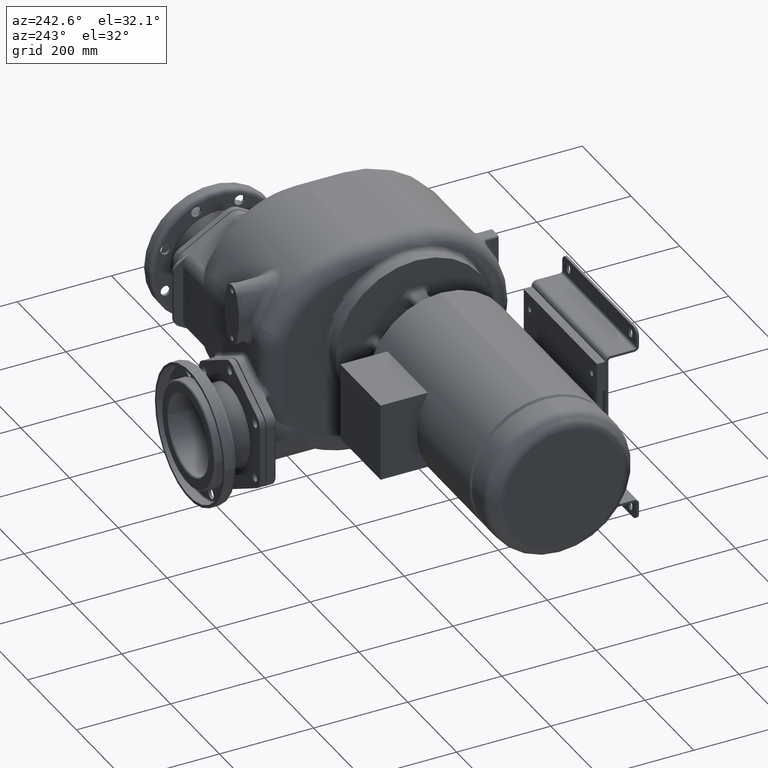
[diagram: clean part render]
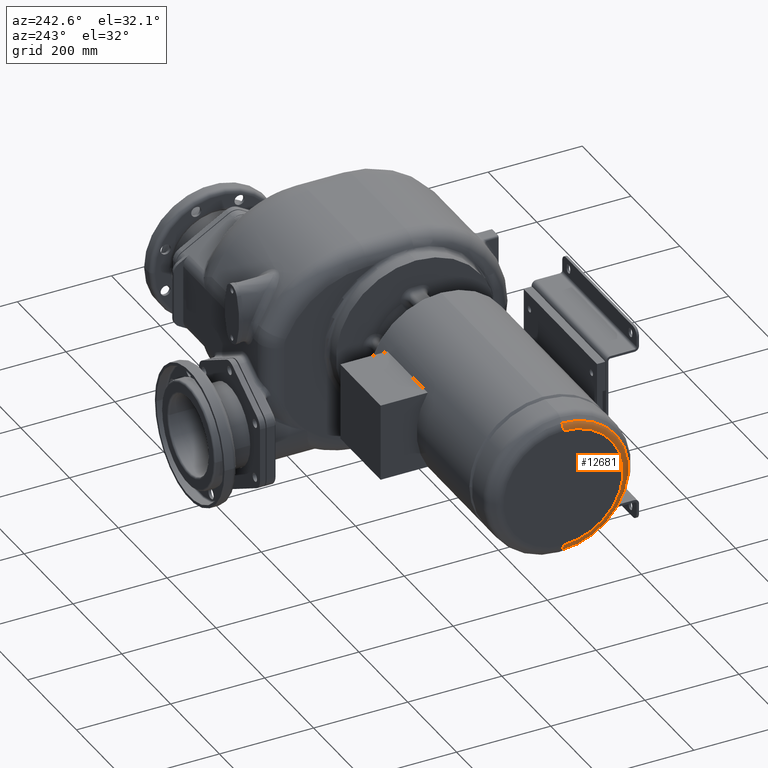
[diagram: same view with one face highlighted and labeled with its STEP entity id]
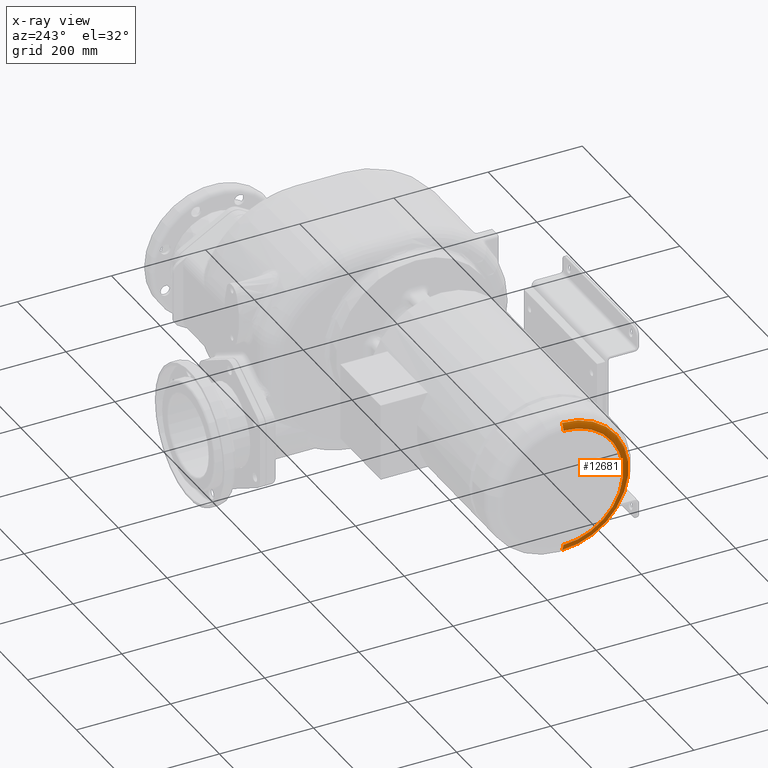
[diagram: x-ray of the same camera — body ghosted, the highlighted face saturated]
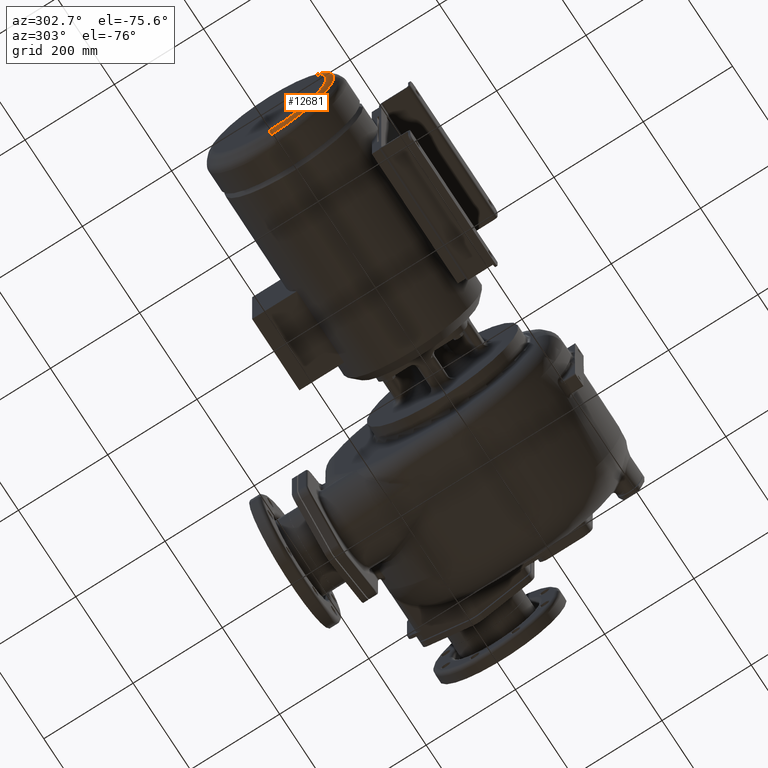
[diagram: same view with one face highlighted and labeled with its STEP entity id]
A machine part, auxiliary view. The second image highlights one B-rep face of the part: STEP entity #12681.
The next image is the same camera in x-ray: the body ghosted, the highlighted face saturated — about 0% of this face is hidden behind the body in this view.
A second angle (auxiliary view) of the same face is appended — the face is thin or edge-on in the first view.
In plain terms, the highlighted toroidal blend (fillet) surface has major radius 127.216 mm and minor (blend) radius 20 mm.
Its self-contained STEP definition (entity closure, byte-faithful):
#178=CARTESIAN_POINT('',(-7.176421374491E2,2.3E2,4.263258414561E-14));
#179=DIRECTION('',(-1.E0,0.E0,0.E0));
#180=DIRECTION('',(0.E0,1.824183733377E-10,-1.E0));
#181=AXIS2_PLACEMENT_3D('',#178,#179,#180);
#197=CARTESIAN_POINT('',(-7.035E2,2.299999997711E2,1.272157652441E2));
#198=DIRECTION('',(0.E0,1.E0,1.799578583372E-9));
#199=DIRECTION('',(-1.E0,0.E0,0.E0));
#200=AXIS2_PLACEMENT_3D('',#197,#198,#199);
#202=CARTESIAN_POINT('',(-7.235E2,2.3E2,4.263258414561E-14));
#203=DIRECTION('',(-1.E0,0.E0,0.E0));
#204=DIRECTION('',(0.E0,1.799577240178E-9,-1.E0));
#205=AXIS2_PLACEMENT_3D('',#202,#203,#204);
#212=CARTESIAN_POINT('',(-7.035E2,2.300000002289E2,-1.272157652441E2));
#213=DIRECTION('',(0.E0,-1.E0,-1.799578692660E-9));
#214=DIRECTION('',(-1.E0,0.E0,0.E0));
#215=AXIS2_PLACEMENT_3D('',#212,#213,#214);
#11924=CARTESIAN_POINT('',(-7.235E2,2.300000002289E2,-1.272157652441E2));
#11925=CARTESIAN_POINT('',(-7.235E2,2.299999997711E2,1.272157652441E2));
#11926=VERTEX_POINT('',#11924);
#11927=VERTEX_POINT('',#11925);
#11928=CARTESIAN_POINT('',(-7.176421374491E2,2.300000000258E2,
-1.413578990424E2));
#11929=CARTESIAN_POINT('',(-7.176421374491E2,2.299999999742E2,
1.413578990424E2));
#11930=VERTEX_POINT('',#11928);
#11931=VERTEX_POINT('',#11929);
#12670=CARTESIAN_POINT('',(-7.035E2,2.3E2,4.263258414561E-14));
#12671=DIRECTION('',(1.E0,0.E0,0.E0));
#12672=DIRECTION('',(0.E0,1.023548266735E-2,-9.999476160752E-1));
#12673=AXIS2_PLACEMENT_3D('',#12670,#12671,#12672);
#12674=TOROIDAL_SURFACE('',#12673,1.272157652441E2,2.E1);
#12675=ORIENTED_EDGE('',*,*,#12664,.T.);
#12676=ORIENTED_EDGE('',*,*,#12654,.T.);
#12677=ORIENTED_EDGE('',*,*,#12624,.F.);
#12678=ORIENTED_EDGE('',*,*,#12651,.F.);
#12679=EDGE_LOOP('',(#12675,#12676,#12677,#12678));
#12680=FACE_OUTER_BOUND('',#12679,.F.);
#12681=ADVANCED_FACE('',(#12680),#12674,.T.);
#182=CIRCLE('',#181,1.413578990424E2);
#201=CIRCLE('',#200,2.E1);
#206=CIRCLE('',#205,1.272157652441E2);
#216=CIRCLE('',#215,2.E1);
#12624=EDGE_CURVE('',#11930,#11931,#182,.T.);
#12651=EDGE_CURVE('',#11926,#11930,#216,.T.);
#12654=EDGE_CURVE('',#11927,#11931,#201,.T.);
#12664=EDGE_CURVE('',#11926,#11927,#206,.T.);